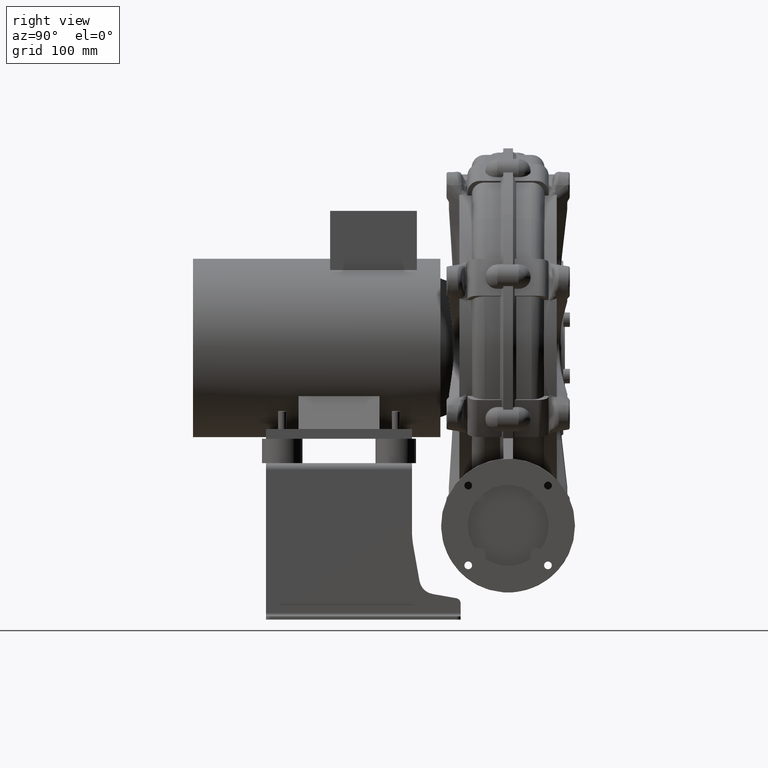
[diagram: clean part render]
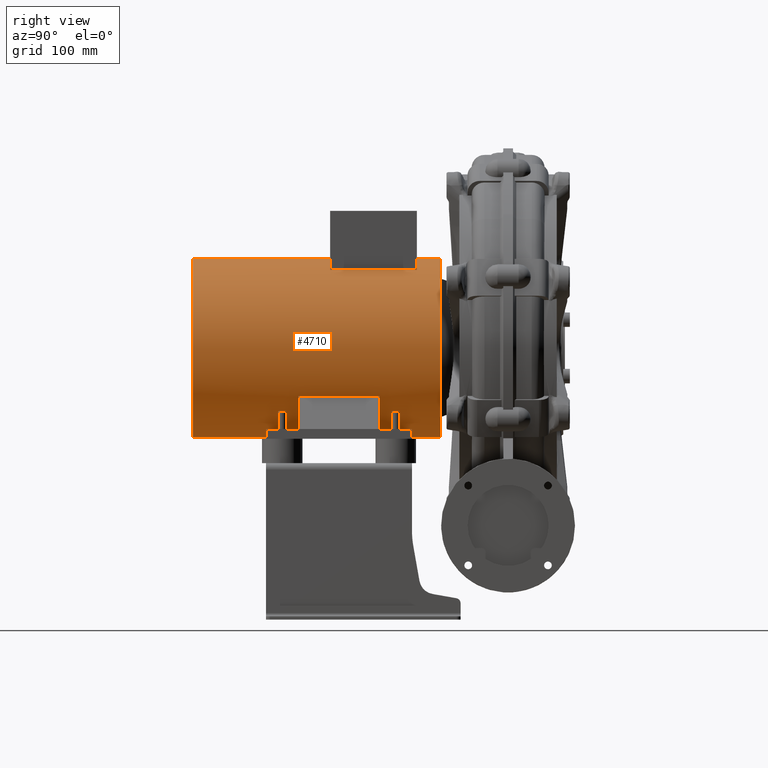
[diagram: same view with one face highlighted and labeled with its STEP entity id]
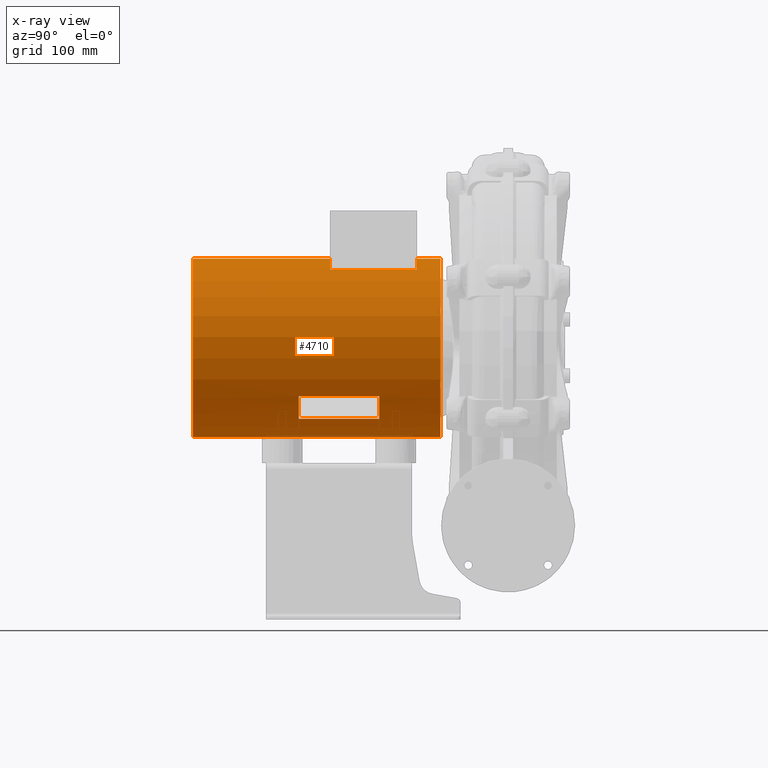
[diagram: x-ray of the same camera — body ghosted, the highlighted face saturated]
A machine part, right view. The second image highlights one B-rep face of the part: STEP entity #4710.
The next image is the same camera in x-ray: the body ghosted, the highlighted face saturated — about 1% of this face is hidden behind the body in this view.
In plain terms, the highlighted cylindrical surface (bore or boss wall) has radius 110 mm, axis along (0, -1, -0).
Its self-contained STEP definition (entity closure, byte-faithful):
#2753=CARTESIAN_POINT('',(4.970155E-014,-180.00000000000026,255.9999999999998));
#2754=VERTEX_POINT('',#2753);
#2755=CARTESIAN_POINT('',(4.737537E-014,-180.00000000000026,145.99999999999983));
#2756=DIRECTION('',(0.0,-1.0,0.0));
#2757=DIRECTION('',(0.0,0.0,1.0));
#2758=AXIS2_PLACEMENT_3D('',#2755,#2756,#2757);
#2759=CIRCLE('',#2758,110.0);
#2760=EDGE_CURVE('',#2754,#2754,#2759,.T.);
#2770=CARTESIAN_POINT('',(-2.352529E-014,124.99999999999974,255.9999999999998));
#2771=VERTEX_POINT('',#2770);
#2772=CARTESIAN_POINT('',(-2.585148E-014,124.99999999999974,145.99999999999983));
#2773=DIRECTION('',(0.0,-1.0,0.0));
#2774=DIRECTION('',(0.0,0.0,1.0));
#2775=AXIS2_PLACEMENT_3D('',#2772,#2773,#2774);
#2776=CIRCLE('',#2775,110.0);
#2777=EDGE_CURVE('',#2771,#2771,#2776,.T.);
#3061=CARTESIAN_POINT('',(-92.570742977567804,-50.000000000000355,86.580663546442196));
#3062=VERTEX_POINT('',#3061);
#3063=CARTESIAN_POINT('',(-66.74592952809823,-50.00000000000032,58.564418619018745));
#3064=VERTEX_POINT('',#3063);
#3065=CARTESIAN_POINT('',(1.616393E-014,-50.00000000000032,145.99999999999983));
#3066=DIRECTION('',(0.0,-1.0,0.0));
#3067=DIRECTION('',(0.0,0.0,1.0));
#3068=AXIS2_PLACEMENT_3D('',#3065,#3066,#3067);
#3069=CIRCLE('',#3068,110.0);
#3070=EDGE_CURVE('',#3062,#3064,#3069,.T.);
#3094=CARTESIAN_POINT('',(-92.570742977567846,49.999999999999702,86.580663546442196));
#3095=VERTEX_POINT('',#3094);
#3096=CARTESIAN_POINT('',(-92.570742977566169,49.999999999999694,86.580663546439609));
#3097=DIRECTION('',(0.0,-1.0,0.0));
#3098=VECTOR('',#3097,100.00000000000003);
#3099=LINE('',#3096,#3098);
#3100=EDGE_CURVE('',#3095,#3062,#3099,.T.);
#3119=CARTESIAN_POINT('',(-66.745929528098259,49.999999999999702,58.564418619018745));
#3120=VERTEX_POINT('',#3119);
#3127=CARTESIAN_POINT('',(-66.745929528108846,-50.000000000000341,58.564418619026952));
#3128=DIRECTION('',(0.0,1.0,0.0));
#3129=VECTOR('',#3128,100.00000000000003);
#3130=LINE('',#3127,#3129);
#3131=EDGE_CURVE('',#3064,#3120,#3130,.T.);
#3141=CARTESIAN_POINT('',(-7.844874E-015,49.99999999999968,145.99999999999983));
#3142=DIRECTION('',(0.0,1.0,0.0));
#3143=DIRECTION('',(0.0,0.0,1.0));
#3144=AXIS2_PLACEMENT_3D('',#3141,#3142,#3143);
#3145=CIRCLE('',#3144,110.0);
#3146=EDGE_CURVE('',#3120,#3095,#3145,.T.);
#3434=CARTESIAN_POINT('',(92.570742977567804,49.99999999999973,86.580663546442196));
#3435=VERTEX_POINT('',#3434);
#3436=CARTESIAN_POINT('',(66.74592952809823,49.99999999999973,58.564418619018745));
#3437=VERTEX_POINT('',#3436);
#3438=CARTESIAN_POINT('',(-7.844874E-015,49.99999999999968,145.99999999999983));
#3439=DIRECTION('',(0.0,1.0,0.0));
#3440=DIRECTION('',(0.0,0.0,1.0));
#3441=AXIS2_PLACEMENT_3D('',#3438,#3439,#3440);
#3442=CIRCLE('',#3441,110.0);
#3443=EDGE_CURVE('',#3435,#3437,#3442,.T.);
#3466=CARTESIAN_POINT('',(92.570742977567846,-50.000000000000284,86.580663546442196));
#3467=VERTEX_POINT('',#3466);
#3476=CARTESIAN_POINT('',(92.570742977566169,-50.000000000000298,86.580663546439609));
#3477=DIRECTION('',(0.0,1.0,0.0));
#3478=VECTOR('',#3477,100.00000000000003);
#3479=LINE('',#3476,#3478);
#3480=EDGE_CURVE('',#3467,#3435,#3479,.T.);
#3490=CARTESIAN_POINT('',(66.745929528098259,-50.00000000000032,58.564418619018745));
#3491=VERTEX_POINT('',#3490);
#3498=CARTESIAN_POINT('',(66.74592952810886,49.999999999999737,58.564418619026952));
#3499=DIRECTION('',(0.0,-1.0,0.0));
#3500=VECTOR('',#3499,100.00000000000003);
#3501=LINE('',#3498,#3500);
#3502=EDGE_CURVE('',#3437,#3491,#3501,.T.);
#3514=CARTESIAN_POINT('',(1.616393E-014,-50.00000000000032,145.99999999999983));
#3515=DIRECTION('',(0.0,-1.0,0.0));
#3516=DIRECTION('',(0.0,0.0,1.0));
#3517=AXIS2_PLACEMENT_3D('',#3514,#3515,#3516);
#3518=CIRCLE('',#3517,110.0);
#3519=EDGE_CURVE('',#3491,#3467,#3518,.T.);
#3648=CARTESIAN_POINT('',(-53.500000000000021,95.999999999999773,242.11321449207679));
#3649=VERTEX_POINT('',#3648);
#3650=CARTESIAN_POINT('',(53.499999999999986,95.999999999999773,242.11321449207679));
#3651=VERTEX_POINT('',#3650);
#3652=CARTESIAN_POINT('',(-1.888892E-014,95.999999999999773,145.99999999999983));
#3653=DIRECTION('',(0.0,1.0,0.0));
#3654=DIRECTION('',(0.0,0.0,1.0));
#3655=AXIS2_PLACEMENT_3D('',#3652,#3653,#3654);
#3656=CIRCLE('',#3655,110.0);
#3657=EDGE_CURVE('',#3649,#3651,#3656,.T.);
#3680=CARTESIAN_POINT('',(53.500000000000021,-11.000000000000263,242.11321449207679));
#3681=VERTEX_POINT('',#3680);
#3682=CARTESIAN_POINT('',(53.499999999999993,95.999999999999773,242.11321449207679));
#3683=DIRECTION('',(0.0,-1.0,0.0));
#3684=VECTOR('',#3683,107.00000000000003);
#3685=LINE('',#3682,#3684);
#3686=EDGE_CURVE('',#3651,#3681,#3685,.T.);
#3704=CARTESIAN_POINT('',(-53.500000000000007,-11.000000000000263,242.11321449207679));
#3705=VERTEX_POINT('',#3704);
#3706=CARTESIAN_POINT('',(6.800496E-015,-11.000000000000263,145.99999999999983));
#3707=DIRECTION('',(0.0,-1.0,0.0));
#3708=DIRECTION('',(0.0,0.0,1.0));
#3709=AXIS2_PLACEMENT_3D('',#3706,#3707,#3708);
#3710=CIRCLE('',#3709,110.0);
#3711=EDGE_CURVE('',#3681,#3705,#3710,.T.);
#3729=CARTESIAN_POINT('',(-53.500000000000014,-11.000000000000263,242.11321449207679));
#3730=DIRECTION('',(0.0,1.0,0.0));
#3731=VECTOR('',#3730,107.00000000000003);
#3732=LINE('',#3729,#3731);
#3733=EDGE_CURVE('',#3705,#3649,#3732,.T.);
#3805=CARTESIAN_POINT('',(1.076195E-014,-27.500000000000249,145.99999999999983));
#3806=DIRECTION('',(2.400880E-016,-1.0,-5.334183E-018));
#3807=DIRECTION('',(0.0,0.0,1.0));
#3808=AXIS2_PLACEMENT_3D('',#3805,#3806,#3807);
#3809=CYLINDRICAL_SURFACE('',#3808,110.0);
#3810=CARTESIAN_POINT('',(-109.99642083929092,-138.17666126418186,145.11264294356911));
#3811=VERTEX_POINT('',#3810);
#3812=CARTESIAN_POINT('',(-109.646406724013,-131.48298217179939,137.1871972385448));
#3813=VERTEX_POINT('',#3812);
#3814=CARTESIAN_POINT('',(-109.99642083929091,-138.17666126418183,145.11264294356909));
#3815=CARTESIAN_POINT('',(-109.98640944947036,-138.17666126418183,143.87163512162664));
#3816=CARTESIAN_POINT('',(-109.95347502731177,-138.03046907723962,142.59418240218511));
#3817=CARTESIAN_POINT('',(-109.85843135713255,-137.21223621787459,140.31029652863));
#3818=CARTESIAN_POINT('',(-109.81474203885307,-136.67462905741942,139.60364222296772));
#3819=CARTESIAN_POINT('',(-109.75127738458443,-135.74246516402746,138.58386526508627));
#3820=CARTESIAN_POINT('',(-109.71769527764008,-135.12154883156586,138.11716295550681));
#3821=CARTESIAN_POINT('',(-109.67760707057458,-133.96971312546438,137.58195609738206));
#3822=CARTESIAN_POINT('',(-109.66618079382121,-133.51557467130687,137.43622527280505));
#3823=CARTESIAN_POINT('',(-109.65014466755761,-132.53238881506036,137.23318119328442));
#3824=CARTESIAN_POINT('',(-109.64640672401299,-132.00784829025125,137.1871972385448));
#3825=CARTESIAN_POINT('',(-109.64640672401299,-131.48298217179939,137.1871972385448));
#3826=B_SPLINE_CURVE_WITH_KNOTS('',3,(#3814,#3815,#3816,#3817,#3818,#3819,#3820,#3821,#3822,#3823,#3824,#3825),.UNSPECIFIED.,.F.,.U.,(4,2,2,2,2,4),(0.0,0.37231446088537,0.728102808409771,1.204198864470581,1.49238735578631,1.808090783162337),.UNSPECIFIED.);
#3827=EDGE_CURVE('',#3811,#3813,#3826,.T.);
#3828=ORIENTED_EDGE('',*,*,#3827,.T.);
#3829=CARTESIAN_POINT('',(-109.99642083929092,-124.77309562398737,145.11264294356911));
#3830=VERTEX_POINT('',#3829);
#3831=CARTESIAN_POINT('',(-109.64640672401299,-131.48298217179936,137.1871972385448));
#3832=CARTESIAN_POINT('',(-109.64640672401299,-130.56369830123947,137.1871972385448));
#3833=CARTESIAN_POINT('',(-109.65796701369388,-129.65194435956522,137.32521643680036));
#3834=CARTESIAN_POINT('',(-109.70580022848038,-128.11019878455426,137.95527645299782));
#3835=CARTESIAN_POINT('',(-109.7355719717803,-127.49969581562712,138.35941995367591));
#3836=CARTESIAN_POINT('',(-109.79724882997529,-126.53096878454058,139.3105604751604));
#3837=CARTESIAN_POINT('',(-109.8366483925396,-126.01902294002375,139.94044698923631));
#3838=CARTESIAN_POINT('',(-109.9075417972267,-125.31760618787101,141.44951235326869));
#3839=CARTESIAN_POINT('',(-109.93268110480463,-125.11942775564461,142.09566357361101));
#3840=CARTESIAN_POINT('',(-109.97497456115055,-124.83518001581103,143.52975826139087));
#3841=CARTESIAN_POINT('',(-109.99006653720393,-124.77309562398736,144.32496623391165));
#3842=CARTESIAN_POINT('',(-109.99642083929092,-124.77309562398736,145.11264294356911));
#3843=B_SPLINE_CURVE_WITH_KNOTS('',3,(#3831,#3832,#3833,#3834,#3835,#3836,#3837,#3838,#3839,#3840,#3841,#3842),.UNSPECIFIED.,.F.,.U.,(4,2,2,2,2,4),(0.0,0.275785161167967,0.499729491640265,0.683397029581067,0.808506146126757,0.954547615339849),.UNSPECIFIED.);
#3844=EDGE_CURVE('',#3813,#3830,#3843,.T.);
#3845=ORIENTED_EDGE('',*,*,#3844,.T.);
#3846=CARTESIAN_POINT('',(-109.77461140069926,-131.48298217179939,153.03808864859343));
#3847=VERTEX_POINT('',#3846);
#3848=CARTESIAN_POINT('',(-109.99642083929091,-124.77309562398736,145.11264294356914));
#3849=CARTESIAN_POINT('',(-110.00678215769211,-124.77309562398736,146.39702777045261));
#3850=CARTESIAN_POINT('',(-109.9931600203921,-124.93453415054972,147.71542893761611));
#3851=CARTESIAN_POINT('',(-109.93412351202682,-125.79248909107548,149.94308735159743));
#3852=CARTESIAN_POINT('',(-109.90291613636174,-126.31856855662143,150.64741543562747));
#3853=CARTESIAN_POINT('',(-109.85246667106479,-127.35094480889593,151.7245679005799));
#3854=CARTESIAN_POINT('',(-109.82660719484647,-127.99085834852271,152.18217150661837));
#3855=CARTESIAN_POINT('',(-109.7969034737055,-129.14140920591865,152.68378724075922));
#3856=CARTESIAN_POINT('',(-109.78871519189087,-129.57409861740069,152.81510475139913));
#3857=CARTESIAN_POINT('',(-109.77730134749874,-130.50155451427483,152.9966450227414));
#3858=CARTESIAN_POINT('',(-109.77461140069926,-130.99192956356771,153.03808864859343));
#3859=CARTESIAN_POINT('',(-109.77461140069926,-131.48298217179939,153.03808864859343));
#3860=B_SPLINE_CURVE_WITH_KNOTS('',3,(#3848,#3849,#3850,#3851,#3852,#3853,#3854,#3855,#3856,#3857,#3858,#3859),.UNSPECIFIED.,.F.,.U.,(4,2,2,2,2,4),(0.0,0.385327985799469,0.716077551845481,1.099436865282513,1.316622449357015,1.551522109797855),.UNSPECIFIED.);
#3861=EDGE_CURVE('',#3830,#3847,#3860,.T.);
#3862=ORIENTED_EDGE('',*,*,#3861,.T.);
#3863=CARTESIAN_POINT('',(-109.77461140069926,-131.48298217179939,153.03808864859343));
#3864=CARTESIAN_POINT('',(-109.77461140069926,-132.39897758236174,153.03808864859343));
#3865=CARTESIAN_POINT('',(-109.78408669800521,-133.30381411383587,152.89750455170801));
#3866=CARTESIAN_POINT('',(-109.82210147739607,-134.85745334836506,152.26021113144429));
#3867=CARTESIAN_POINT('',(-109.84593256832618,-135.48075777225094,151.84442277240097));
#3868=CARTESIAN_POINT('',(-109.8943953647441,-136.50302309432178,150.84167263656514));
#3869=CARTESIAN_POINT('',(-109.92433576738927,-137.02408014982836,150.19079439210219));
#3870=CARTESIAN_POINT('',(-109.96999800790151,-137.69383536429024,148.63679771118649));
#3871=CARTESIAN_POINT('',(-109.98346173909761,-137.87033460984131,148.01079842140109));
#3872=CARTESIAN_POINT('',(-110.00069478410198,-138.1220317555651,146.63158161945537));
#3873=CARTESIAN_POINT('',(-110.00251138792665,-138.17666126418186,145.86762488237557));
#3874=CARTESIAN_POINT('',(-109.99642083929092,-138.17666126418186,145.11264294356911));
#3875=B_SPLINE_CURVE_WITH_KNOTS('',3,(#3863,#3864,#3865,#3866,#3867,#3868,#3869,#3870,#3871,#3872,#3873,#3874),.UNSPECIFIED.,.F.,.U.,(4,2,2,2,2,4),(0.0,0.274798623168694,0.503807245972399,0.704564605012723,0.828790308873579,0.973756011323332),.UNSPECIFIED.);
#3876=EDGE_CURVE('',#3847,#3811,#3875,.T.);
#3877=ORIENTED_EDGE('',*,*,#3876,.T.);
#3878=EDGE_LOOP('',(#3828,#3845,#3862,#3877));
#3879=FACE_OUTER_BOUND('',#3878,.T.);
#3880=CARTESIAN_POINT('',(-109.99111733190036,-68.8735818476502,147.39789415912827));
#3881=VERTEX_POINT('',#3880);
#3882=CARTESIAN_POINT('',(-109.99111733190036,-59.683954619125075,147.39789415912827));
#3883=VERTEX_POINT('',#3882);
#3884=CARTESIAN_POINT('',(-109.99111733190034,-68.8735818476502,147.39789415912827));
#3885=DIRECTION('',(0.0,1.0,0.0));
#3886=VECTOR('',#3885,9.189627228525126);
#3887=LINE('',#3884,#3886);
#3888=EDGE_CURVE('',#3881,#3883,#3887,.T.);
#3889=ORIENTED_EDGE('',*,*,#3888,.T.);
#3890=CARTESIAN_POINT('',(-109.8348666127161,-59.683954619125075,139.97487957241839));
#3891=VERTEX_POINT('',#3890);
#3892=CARTESIAN_POINT('',(1.848893E-014,-59.683954619125039,145.99999999999983));
#3893=DIRECTION('',(0.0,-1.0,0.0));
#3894=DIRECTION('',(0.0,0.0,1.0));
#3895=AXIS2_PLACEMENT_3D('',#3892,#3893,#3894);
#3896=CIRCLE('',#3895,110.0);
#3897=EDGE_CURVE('',#3883,#3891,#3896,.T.);
#3898=ORIENTED_EDGE('',*,*,#3897,.T.);
#3899=CARTESIAN_POINT('',(-109.8348666127161,-69.538087520259609,139.97487957241839));
#3900=VERTEX_POINT('',#3899);
#3901=CARTESIAN_POINT('',(-109.83486661271608,-59.683954619125075,139.97487957241839));
#3902=DIRECTION('',(0.0,-1.0,0.0));
#3903=VECTOR('',#3902,9.854132901134534);
#3904=LINE('',#3901,#3903);
#3905=EDGE_CURVE('',#3891,#3900,#3904,.T.);
#3906=ORIENTED_EDGE('',*,*,#3905,.T.);
#3907=CARTESIAN_POINT('',(-109.67946141521895,-69.538087520259609,137.60859107971174));
#3908=VERTEX_POINT('',#3907);
#3909=CARTESIAN_POINT('',(2.085479E-014,-69.538087520259566,145.99999999999983));
#3910=DIRECTION('',(0.0,-1.0,0.0));
#3911=DIRECTION('',(0.0,0.0,1.0));
#3912=AXIS2_PLACEMENT_3D('',#3909,#3910,#3911);
#3913=CIRCLE('',#3912,110.0);
#3914=EDGE_CURVE('',#3900,#3908,#3913,.T.);
#3915=ORIENTED_EDGE('',*,*,#3914,.T.);
#3916=CARTESIAN_POINT('',(-109.67946141521895,-57.02593192868747,137.60859107971174));
#3917=VERTEX_POINT('',#3916);
#3918=CARTESIAN_POINT('',(-109.67946141521894,-69.538087520259609,137.60859107971174));
#3919=DIRECTION('',(0.0,1.0,0.0));
#3920=VECTOR('',#3919,12.512155591572139);
#3921=LINE('',#3918,#3920);
#3922=EDGE_CURVE('',#3908,#3917,#3921,.T.);
#3923=ORIENTED_EDGE('',*,*,#3922,.T.);
#3924=CARTESIAN_POINT('',(-109.38574227541736,-57.02593192868747,157.60859107971174));
#3925=VERTEX_POINT('',#3924);
#3926=CARTESIAN_POINT('',(1.785077E-014,-57.025931928687434,145.99999999999983));
#3927=DIRECTION('',(0.0,1.0,0.0));
#3928=DIRECTION('',(0.0,0.0,1.0));
#3929=AXIS2_PLACEMENT_3D('',#3926,#3927,#3928);
#3930=CIRCLE('',#3929,110.0);
#3931=EDGE_CURVE('',#3917,#3925,#3930,.T.);
#3932=ORIENTED_EDGE('',*,*,#3931,.T.);
#3933=CARTESIAN_POINT('',(-109.38574227541736,-69.538087520259609,157.60859107971174));
#3934=VERTEX_POINT('',#3933);
#3935=CARTESIAN_POINT('',(-109.38574227541736,-57.02593192868747,157.60859107971174));
#3936=DIRECTION('',(0.0,-1.0,0.0));
#3937=VECTOR('',#3936,12.512155591572139);
#3938=LINE('',#3935,#3937);
#3939=EDGE_CURVE('',#3925,#3934,#3938,.T.);
#3940=ORIENTED_EDGE('',*,*,#3939,.T.);
#3941=CARTESIAN_POINT('',(-109.61103887332804,-69.538087520259609,155.2423025870051));
#3942=VERTEX_POINT('',#3941);
#3943=CARTESIAN_POINT('',(2.085479E-014,-69.538087520259566,145.99999999999983));
#3944=DIRECTION('',(0.0,-1.0,0.0));
#3945=DIRECTION('',(0.0,0.0,1.0));
#3946=AXIS2_PLACEMENT_3D('',#3943,#3944,#3945);
#3947=CIRCLE('',#3946,110.0);
#3948=EDGE_CURVE('',#3934,#3942,#3947,.T.);
#3949=ORIENTED_EDGE('',*,*,#3948,.T.);
#3950=CARTESIAN_POINT('',(-109.61103887332804,-59.683954619125075,155.2423025870051));
#3951=VERTEX_POINT('',#3950);
#3952=CARTESIAN_POINT('',(-109.61103887332803,-69.538087520259609,155.2423025870051));
#3953=DIRECTION('',(0.0,1.0,0.0));
#3954=VECTOR('',#3953,9.854132901134534);
#3955=LINE('',#3952,#3954);
#3956=EDGE_CURVE('',#3942,#3951,#3955,.T.);
#3957=ORIENTED_EDGE('',*,*,#3956,.T.);
#3958=CARTESIAN_POINT('',(-109.93557626611877,-59.683954619125075,149.76418265183491));
#3959=VERTEX_POINT('',#3958);
#3960=CARTESIAN_POINT('',(1.848893E-014,-59.683954619125039,145.99999999999983));
#3961=DIRECTION('',(0.0,-1.0,0.0));
#3962=DIRECTION('',(0.0,0.0,1.0));
#3963=AXIS2_PLACEMENT_3D('',#3960,#3961,#3962);
#3964=CIRCLE('',#3963,110.0);
#3965=EDGE_CURVE('',#3951,#3959,#3964,.T.);
#3966=ORIENTED_EDGE('',*,*,#3965,.T.);
#3967=CARTESIAN_POINT('',(-109.93557626611877,-68.8735818476502,149.76418265183491));
#3968=VERTEX_POINT('',#3967);
#3969=CARTESIAN_POINT('',(-109.93557626611876,-59.683954619125075,149.76418265183491));
#3970=DIRECTION('',(0.0,-1.0,0.0));
#3971=VECTOR('',#3970,9.189627228525126);
#3972=LINE('',#3969,#3971);
#3973=EDGE_CURVE('',#3959,#3968,#3972,.T.);
#3974=ORIENTED_EDGE('',*,*,#3973,.T.);
#3975=CARTESIAN_POINT('',(2.069525E-014,-68.873581847650172,145.99999999999983));
#3976=DIRECTION('',(0.0,-1.0,0.0));
#3977=DIRECTION('',(0.0,0.0,1.0));
#3978=AXIS2_PLACEMENT_3D('',#3975,#3976,#3977);
#3979=CIRCLE('',#3978,110.0);
#3980=EDGE_CURVE('',#3968,#3881,#3979,.T.);
#3981=ORIENTED_EDGE('',*,*,#3980,.T.);
#3982=EDGE_LOOP('',(#3889,#3898,#3906,#3915,#3923,#3932,#3940,#3949,#3957,#3966,#3974,#3981));
#3983=FACE_BOUND('',#3982,.T.);
#3984=CARTESIAN_POINT('',(-109.99964470475375,-95.55105348460323,146.27957973449293));
#3985=VERTEX_POINT('',#3984);
#3986=CARTESIAN_POINT('',(-109.80081670837137,-101.48298217179931,152.61669480742648));
#3987=VERTEX_POINT('',#3986);
#3988=CARTESIAN_POINT('',(2.703736E-014,-95.289349692213221,145.99999999999983));
#3989=DIRECTION('',(-1.608274E-016,0.730061038034414,0.683381943530932));
#3990=DIRECTION('',(1.795105E-016,-0.683381943530932,0.730061038034414));
#3991=AXIS2_PLACEMENT_3D('',#3988,#3989,#3990);
#3992=ELLIPSE('',#3991,150.67233322868373,110.00000000000001);
#3993=EDGE_CURVE('',#3985,#3987,#3992,.T.);
#3994=ORIENTED_EDGE('',*,*,#3993,.T.);
#3995=CARTESIAN_POINT('',(-109.80081670837137,-104.62722852512186,152.61669480742648));
#3996=VERTEX_POINT('',#3995);
#3997=CARTESIAN_POINT('',(-109.80081670837137,-101.48298217179931,152.61669480742648));
#3998=DIRECTION('',(0.0,-1.0,0.0));
#3999=VECTOR('',#3998,3.144246353322558);
#4000=LINE('',#3997,#3999);
#4001=EDGE_CURVE('',#3987,#3996,#4000,.T.);
#4002=ORIENTED_EDGE('',*,*,#4001,.T.);
#4003=CARTESIAN_POINT('',(-109.99946082621308,-98.468395461912763,146.34440955621093));
#4004=VERTEX_POINT('',#4003);
#4005=CARTESIAN_POINT('',(2.771942E-014,-98.130215535917358,145.99999999999983));
#4006=DIRECTION('',(1.564939E-016,-0.713530452504738,-0.70062421692972));
#4007=DIRECTION('',(1.833006E-016,-0.70062421692972,0.713530452504738));
#4008=AXIS2_PLACEMENT_3D('',#4005,#4006,#4007);
#4009=ELLIPSE('',#4008,154.16300679790473,110.0);
#4010=EDGE_CURVE('',#3996,#4004,#4009,.T.);
#4011=ORIENTED_EDGE('',*,*,#4010,.T.);
#4012=CARTESIAN_POINT('',(-109.67946141521894,-105.45380875202622,137.60859107971174));
#4013=VERTEX_POINT('',#4012);
#4014=CARTESIAN_POINT('',(2.786673E-014,-98.743795311127911,145.99999999999983));
#4015=DIRECTION('',(2.007179E-016,-0.781010155149751,0.624518324433288));
#4016=DIRECTION('',(-1.334233E-016,0.624518324433288,0.781010155149751));
#4017=AXIS2_PLACEMENT_3D('',#4014,#4015,#4016);
#4018=ELLIPSE('',#4017,140.84323907274751,110.00000000000001);
#4019=EDGE_CURVE('',#4004,#4013,#4018,.T.);
#4020=ORIENTED_EDGE('',*,*,#4019,.T.);
#4021=CARTESIAN_POINT('',(-109.67946141521894,-102.13128038897923,137.60859107971174));
#4022=VERTEX_POINT('',#4021);
#4023=CARTESIAN_POINT('',(-109.67946141521894,-105.45380875202622,137.60859107971174));
#4024=DIRECTION('',(0.0,1.0,0.0));
#4025=VECTOR('',#4024,3.322528363046985);
#4026=LINE('',#4023,#4025);
#4027=EDGE_CURVE('',#4013,#4022,#4026,.T.);
#4028=ORIENTED_EDGE('',*,*,#4027,.T.);
#4029=CARTESIAN_POINT('',(-109.99402317109647,-96.555915721232068,144.85332365669714));
#4030=VERTEX_POINT('',#4029);
#4031=CARTESIAN_POINT('',(2.712958E-014,-95.673462338466663,145.99999999999983));
#4032=DIRECTION('',(-2.031651E-016,0.792492155480902,-0.609882106231388));
#4033=DIRECTION('',(-1.296665E-016,0.609882106231388,0.792492155480902));
#4034=AXIS2_PLACEMENT_3D('',#4031,#4032,#4033);
#4035=ELLIPSE('',#4034,138.80263576016043,110.0);
#4036=EDGE_CURVE('',#4022,#4030,#4035,.T.);
#4037=ORIENTED_EDGE('',*,*,#4036,.T.);
#4038=CARTESIAN_POINT('',(-109.9795859006351,-95.55105348460323,143.88087633092729));
#4039=VERTEX_POINT('',#4038);
#4040=CARTESIAN_POINT('',(2.762593E-014,-97.740814609311457,145.99999999999983));
#4041=DIRECTION('',(1.517660E-016,-0.695421427516059,-0.718602141766587));
#4042=DIRECTION('',(1.872339E-016,-0.718602141766587,0.695421427516059));
#4043=AXIS2_PLACEMENT_3D('',#4040,#4041,#4042);
#4044=ELLIPSE('',#4043,158.17746714090106,109.99999999999999);
#4045=EDGE_CURVE('',#4030,#4039,#4044,.T.);
#4046=ORIENTED_EDGE('',*,*,#4045,.T.);
#4047=CARTESIAN_POINT('',(-109.67946141521895,-95.55105348460323,137.60859107971174));
#4048=VERTEX_POINT('',#4047);
#4049=CARTESIAN_POINT('',(2.710019E-014,-95.551053484603187,145.99999999999983));
#4050=DIRECTION('',(0.0,-1.0,0.0));
#4051=DIRECTION('',(0.0,0.0,1.0));
#4052=AXIS2_PLACEMENT_3D('',#4049,#4050,#4051);
#4053=CIRCLE('',#4052,110.0);
#4054=EDGE_CURVE('',#4039,#4048,#4053,.T.);
#4055=ORIENTED_EDGE('',*,*,#4054,.T.);
#4056=CARTESIAN_POINT('',(-109.67946141521895,-93.022690437601597,137.60859107971174));
#4057=VERTEX_POINT('',#4056);
#4058=CARTESIAN_POINT('',(-109.67946141521894,-95.55105348460323,137.60859107971174));
#4059=DIRECTION('',(0.0,1.0,0.0));
#4060=VECTOR('',#4059,2.528363047001633);
#4061=LINE('',#4058,#4060);
#4062=EDGE_CURVE('',#4048,#4057,#4061,.T.);
#4063=ORIENTED_EDGE('',*,*,#4062,.T.);
#4064=CARTESIAN_POINT('',(-109.28746484291617,-93.022690437601597,158.50000112833411));
#4065=VERTEX_POINT('',#4064);
#4066=CARTESIAN_POINT('',(2.649316E-014,-93.022690437601554,145.99999999999983));
#4067=DIRECTION('',(0.0,1.0,0.0));
#4068=DIRECTION('',(0.0,0.0,1.0));
#4069=AXIS2_PLACEMENT_3D('',#4066,#4067,#4068);
#4070=CIRCLE('',#4069,110.0);
#4071=EDGE_CURVE('',#4057,#4065,#4070,.T.);
#4072=ORIENTED_EDGE('',*,*,#4071,.T.);
#4073=CARTESIAN_POINT('',(-109.28746484291617,-95.55105348460323,158.50000112833411));
#4074=VERTEX_POINT('',#4073);
#4075=CARTESIAN_POINT('',(-109.28746484291615,-93.022690437601597,158.50000112833411));
#4076=DIRECTION('',(0.0,-1.0,0.0));
#4077=VECTOR('',#4076,2.528363047001633);
#4078=LINE('',#4075,#4077);
#4079=EDGE_CURVE('',#4065,#4074,#4078,.T.);
#4080=ORIENTED_EDGE('',*,*,#4079,.T.);
#4081=CARTESIAN_POINT('',(2.710019E-014,-95.551053484603187,145.99999999999983));
#4082=DIRECTION('',(0.0,-1.0,0.0));
#4083=DIRECTION('',(0.0,0.0,1.0));
#4084=AXIS2_PLACEMENT_3D('',#4081,#4082,#4083);
#4085=CIRCLE('',#4084,110.0);
#4086=EDGE_CURVE('',#4074,#3985,#4085,.T.);
#4087=ORIENTED_EDGE('',*,*,#4086,.T.);
#4088=EDGE_LOOP('',(#3994,#4002,#4011,#4020,#4028,#4037,#4046,#4055,#4063,#4072,#4080,#4087));
#4089=FACE_BOUND('',#4088,.T.);
#4090=CARTESIAN_POINT('',(-109.67946141521895,-72.30956239870369,137.60859107971174));
#4091=VERTEX_POINT('',#4090);
#4092=CARTESIAN_POINT('',(-109.28746484291617,-72.30956239870369,158.50000112833411));
#4093=VERTEX_POINT('',#4092);
#4094=CARTESIAN_POINT('',(2.152019E-014,-72.309562398703662,145.99999999999983));
#4095=DIRECTION('',(0.0,1.0,0.0));
#4096=DIRECTION('',(0.0,0.0,1.0));
#4097=AXIS2_PLACEMENT_3D('',#4094,#4095,#4096);
#4098=CIRCLE('',#4097,110.0);
#4099=EDGE_CURVE('',#4091,#4093,#4098,.T.);
#4100=ORIENTED_EDGE('',*,*,#4099,.T.);
#4101=CARTESIAN_POINT('',(-109.28746484291617,-74.837925445705338,158.50000112833411));
#4102=VERTEX_POINT('',#4101);
#4103=CARTESIAN_POINT('',(-109.28746484291615,-72.30956239870369,158.50000112833411));
#4104=DIRECTION('',(0.0,-1.0,0.0));
#4105=VECTOR('',#4104,2.528363047001648);
#4106=LINE('',#4103,#4105);
#4107=EDGE_CURVE('',#4093,#4102,#4106,.T.);
#4108=ORIENTED_EDGE('',*,*,#4107,.T.);
#4109=CARTESIAN_POINT('',(-109.67946141521895,-74.837925445705338,137.60859107971174));
#4110=VERTEX_POINT('',#4109);
#4111=CARTESIAN_POINT('',(2.212722E-014,-74.837925445705309,145.99999999999983));
#4112=DIRECTION('',(0.0,-1.0,0.0));
#4113=DIRECTION('',(0.0,0.0,1.0));
#4114=AXIS2_PLACEMENT_3D('',#4111,#4112,#4113);
#4115=CIRCLE('',#4114,110.0);
#4116=EDGE_CURVE('',#4102,#4110,#4115,.T.);
#4117=ORIENTED_EDGE('',*,*,#4116,.T.);
#4118=CARTESIAN_POINT('',(-109.67946141521894,-74.837925445705338,137.60859107971174));
#4119=DIRECTION('',(0.0,1.0,0.0));
#4120=VECTOR('',#4119,2.528363047001648);
#4121=LINE('',#4118,#4120);
#4122=EDGE_CURVE('',#4110,#4091,#4121,.T.);
#4123=ORIENTED_EDGE('',*,*,#4122,.T.);
#4124=EDGE_LOOP('',(#4100,#4108,#4117,#4123));
#4125=FACE_BOUND('',#4124,.T.);
#4126=CARTESIAN_POINT('',(-109.90685115116051,-109.40842787682364,150.52593305702129));
#4127=VERTEX_POINT('',#4126);
#4128=CARTESIAN_POINT('',(-109.96875670160466,-109.40842787682364,143.37844521261286));
#4129=VERTEX_POINT('',#4128);
#4130=CARTESIAN_POINT('',(3.042718E-014,-109.40842787682359,145.99999999999983));
#4131=DIRECTION('',(0.0,-1.0,0.0));
#4132=DIRECTION('',(0.0,0.0,1.0));
#4133=AXIS2_PLACEMENT_3D('',#4130,#4131,#4132);
#4134=CIRCLE('',#4133,110.0);
#4135=EDGE_CURVE('',#4127,#4129,#4134,.T.);
#4136=ORIENTED_EDGE('',*,*,#4135,.T.);
#4137=CARTESIAN_POINT('',(-109.86045977798395,-109.76499189627259,140.46110323530331));
#4138=VERTEX_POINT('',#4137);
#4139=CARTESIAN_POINT('',(-109.96875670160465,-109.40842787682362,143.37844521261286));
#4140=CARTESIAN_POINT('',(-109.95571494843259,-109.40842787682362,142.83137086251992));
#4141=CARTESIAN_POINT('',(-109.93412601007236,-109.41466082405988,142.15760168985804));
#4142=CARTESIAN_POINT('',(-109.91117066475411,-109.45149197586377,141.57989332382024));
#4143=CARTESIAN_POINT('',(-109.90664789320847,-109.45906237464577,141.46683331341018));
#4144=CARTESIAN_POINT('',(-109.88765149246341,-109.53130980771753,141.02049602592038));
#4145=CARTESIAN_POINT('',(-109.87417300272993,-109.62487428761565,140.7330962403432));
#4146=CARTESIAN_POINT('',(-109.86045977798392,-109.76499189627256,140.46110323530331));
#4147=B_SPLINE_CURVE_WITH_KNOTS('',3,(#4139,#4140,#4141,#4142,#4143,#4144,#4145,#4146),.UNSPECIFIED.,.F.,.U.,(4,2,2,4),(0.0,0.164168933927792,0.18064241346171,0.215134237445378),.UNSPECIFIED.);
#4148=EDGE_CURVE('',#4129,#4138,#4147,.T.);
#4149=ORIENTED_EDGE('',*,*,#4148,.T.);
#4150=CARTESIAN_POINT('',(-109.80903185387632,-111.88816855753679,139.52107082039245));
#4151=VERTEX_POINT('',#4150);
#4152=CARTESIAN_POINT('',(-109.86045977798392,-109.76499189627256,140.46110323530331));
#4153=CARTESIAN_POINT('',(-109.85179386451969,-109.84796981303407,140.28922040772588));
#4154=CARTESIAN_POINT('',(-109.84383751304954,-109.96015702885475,140.13933200660131));
#4155=CARTESIAN_POINT('',(-109.83204941354656,-110.20439224000491,139.92307743327706));
#4156=CARTESIAN_POINT('',(-109.82548483706188,-110.36378246240936,139.80548901348158));
#4157=CARTESIAN_POINT('',(-109.81186307294108,-110.98175281804953,139.56764804347196));
#4158=CARTESIAN_POINT('',(-109.80903185387632,-111.43672401461308,139.52107082039245));
#4159=CARTESIAN_POINT('',(-109.80903185387632,-111.88816855753677,139.52107082039245));
#4160=B_SPLINE_CURVE_WITH_KNOTS('',3,(#4152,#4153,#4154,#4155,#4156,#4157,#4158,#4159),.UNSPECIFIED.,.F.,.U.,(4,2,2,4),(0.0,0.057318169220619,0.097928365767004,0.158813279651776),.UNSPECIFIED.);
#4161=EDGE_CURVE('',#4138,#4151,#4160,.T.);
#4162=ORIENTED_EDGE('',*,*,#4161,.T.);
#4163=CARTESIAN_POINT('',(-109.83663997314301,-113.91410048622397,140.00729448327738));
#4164=VERTEX_POINT('',#4163);
#4165=CARTESIAN_POINT('',(-109.80903185387625,-111.88816855753677,139.52107082039245));
#4166=CARTESIAN_POINT('',(-109.80903185387625,-112.29497065176554,139.52107082039245));
#4167=CARTESIAN_POINT('',(-109.81268480845777,-112.69221959243751,139.58205546676913));
#4168=CARTESIAN_POINT('',(-109.81986562942659,-113.07916872488526,139.7073762916676));
#4169=CARTESIAN_POINT('',(-109.82048257063852,-113.11241351232056,139.71814324741345));
#4170=CARTESIAN_POINT('',(-109.82249887743386,-113.22119305313187,139.7533556704887));
#4171=CARTESIAN_POINT('',(-109.82490832506777,-113.3471020594981,139.79600843082179));
#4172=CARTESIAN_POINT('',(-109.82809944764554,-113.51385856721421,139.85249863404769));
#4173=CARTESIAN_POINT('',(-109.83269439390924,-113.7488065150053,139.9349783708692));
#4174=CARTESIAN_POINT('',(-109.83663997314295,-113.91410048622396,140.00729448327738));
#4175=B_SPLINE_CURVE_WITH_KNOTS('',3,(#4165,#4166,#4167,#4168,#4169,#4170,#4171,#4172,#4173,#4174),.UNSPECIFIED.,.F.,.U.,(4,3,3,4),(0.0,0.122040628268634,0.132525765474125,0.146412499344667),.UNSPECIFIED.);
#4176=EDGE_CURVE('',#4151,#4164,#4175,.T.);
#4177=ORIENTED_EDGE('',*,*,#4176,.T.);
#4178=CARTESIAN_POINT('',(-109.83663997314301,-114.05996758508945,140.00729448327738));
#4179=VERTEX_POINT('',#4178);
#4180=CARTESIAN_POINT('',(-109.83663997314301,-113.91410048622397,140.00729448327738));
#4181=DIRECTION('',(0.0,-1.0,0.0));
#4182=VECTOR('',#4181,0.14586709886548);
#4183=LINE('',#4180,#4182);
#4184=EDGE_CURVE('',#4164,#4179,#4183,.T.);
#4185=ORIENTED_EDGE('',*,*,#4184,.T.);
#4186=CARTESIAN_POINT('',(-109.68930439603683,-114.05996758508945,137.7382507231477));
#4187=VERTEX_POINT('',#4186);
#4188=CARTESIAN_POINT('',(3.154396E-014,-114.05996758508941,145.99999999999983));
#4189=DIRECTION('',(0.0,-1.0,0.0));
#4190=DIRECTION('',(0.0,0.0,1.0));
#4191=AXIS2_PLACEMENT_3D('',#4188,#4189,#4190);
#4192=CIRCLE('',#4191,110.0);
#4193=EDGE_CURVE('',#4179,#4187,#4192,.T.);
#4194=ORIENTED_EDGE('',*,*,#4193,.T.);
#4195=CARTESIAN_POINT('',(-109.65675093486945,-111.25607779578637,137.31685688198075));
#4196=VERTEX_POINT('',#4195);
#4197=CARTESIAN_POINT('',(-109.68930439603682,-114.05996758508942,137.7382507231477));
#4198=CARTESIAN_POINT('',(-109.679571962536,-113.58617839609549,137.60903548978573));
#4199=CARTESIAN_POINT('',(-109.67163266508635,-113.10665620067121,137.50654695986788));
#4200=CARTESIAN_POINT('',(-109.66572247658306,-112.6213595714469,137.43090940128178));
#4201=CARTESIAN_POINT('',(-109.66244675554762,-112.35238399209302,137.38898729649787));
#4202=CARTESIAN_POINT('',(-109.65675093486929,-111.83882166049091,137.31685688198078));
#4203=CARTESIAN_POINT('',(-109.65675093486929,-111.25607779578635,137.31685688198078));
#4204=B_SPLINE_CURVE_WITH_KNOTS('',3,(#4197,#4198,#4199,#4200,#4201,#4202,#4203),.UNSPECIFIED.,.F.,.U.,(4,3,4),(0.0,0.147356962225052,0.229029535038219),.UNSPECIFIED.);
#4205=EDGE_CURVE('',#4187,#4196,#4204,.T.);
#4206=ORIENTED_EDGE('',*,*,#4205,.T.);
#4207=CARTESIAN_POINT('',(-109.93474124025154,-106.88006482982203,142.21150842168905));
#4208=VERTEX_POINT('',#4207);
#4209=CARTESIAN_POINT('',(-109.65675093486944,-111.25607779578637,137.31685688198081));
#4210=CARTESIAN_POINT('',(-109.65675093486944,-110.59481392140444,137.31685688198081));
#4211=CARTESIAN_POINT('',(-109.66418804520401,-109.92771860879415,137.40779328638919));
#4212=CARTESIAN_POINT('',(-109.69678855297951,-108.85136869857635,137.83614332764901));
#4213=CARTESIAN_POINT('',(-109.71637898340022,-108.44025276332047,138.09826340255441));
#4214=CARTESIAN_POINT('',(-109.75365928536485,-107.88692625253407,138.63982666050725));
#4215=CARTESIAN_POINT('',(-109.77811716823864,-107.57330273239515,138.99000794835874));
#4216=CARTESIAN_POINT('',(-109.86057558680422,-106.98154464796794,140.4051588251767));
#4217=CARTESIAN_POINT('',(-109.90475400458973,-106.88006482982202,141.34133650105775));
#4218=CARTESIAN_POINT('',(-109.93474124025155,-106.88006482982202,142.21150842168905));
#4219=B_SPLINE_CURVE_WITH_KNOTS('',3,(#4209,#4210,#4211,#4212,#4213,#4214,#4215,#4216,#4217,#4218),.UNSPECIFIED.,.F.,.U.,(4,2,2,2,4),(0.0,0.198379162314576,0.347464314821234,0.430788774642551,0.540348683759639),.UNSPECIFIED.);
#4220=EDGE_CURVE('',#4196,#4208,#4219,.T.);
#4221=ORIENTED_EDGE('',*,*,#4220,.T.);
#4222=CARTESIAN_POINT('',(-109.90685115116051,-106.88006482982203,150.52593305702129));
#4223=VERTEX_POINT('',#4222);
#4224=CARTESIAN_POINT('',(2.982015E-014,-106.880064829822,145.99999999999983));
#4225=DIRECTION('',(0.0,1.0,0.0));
#4226=DIRECTION('',(0.0,0.0,1.0));
#4227=AXIS2_PLACEMENT_3D('',#4224,#4225,#4226);
#4228=CIRCLE('',#4227,110.0);
#4229=EDGE_CURVE('',#4208,#4223,#4228,.T.);
#4230=ORIENTED_EDGE('',*,*,#4229,.T.);
#4231=CARTESIAN_POINT('',(-109.90685115116051,-105.17828200972477,150.52593305702129));
#4232=VERTEX_POINT('',#4231);
#4233=CARTESIAN_POINT('',(-109.90685115116051,-106.88006482982203,150.52593305702129));
#4234=DIRECTION('',(0.0,1.0,0.0));
#4235=VECTOR('',#4234,1.701782820097264);
#4236=LINE('',#4233,#4235);
#4237=EDGE_CURVE('',#4223,#4232,#4236,.T.);
#4238=ORIENTED_EDGE('',*,*,#4237,.T.);
#4239=CARTESIAN_POINT('',(-109.80081670837137,-105.17828200972477,152.61669480742648));
#4240=VERTEX_POINT('',#4239);
#4241=CARTESIAN_POINT('',(2.941157E-014,-105.17828200972474,145.99999999999983));
#4242=DIRECTION('',(0.0,1.0,0.0));
#4243=DIRECTION('',(0.0,0.0,1.0));
#4244=AXIS2_PLACEMENT_3D('',#4241,#4242,#4243);
#4245=CIRCLE('',#4244,110.0);
#4246=EDGE_CURVE('',#4232,#4240,#4245,.T.);
#4247=ORIENTED_EDGE('',*,*,#4246,.T.);
#4248=CARTESIAN_POINT('',(-109.80081670837137,-106.88006482982203,152.61669480742648));
#4249=VERTEX_POINT('',#4248);
#4250=CARTESIAN_POINT('',(-109.80081670837137,-105.17828200972477,152.61669480742648));
#4251=DIRECTION('',(0.0,-1.0,0.0));
#4252=VECTOR('',#4251,1.701782820097264);
#4253=LINE('',#4250,#4252);
#4254=EDGE_CURVE('',#4240,#4249,#4253,.T.);
#4255=ORIENTED_EDGE('',*,*,#4254,.T.);
#4256=CARTESIAN_POINT('',(-109.45584261917374,-106.88006482982203,156.92787795167283));
#4257=VERTEX_POINT('',#4256);
#4258=CARTESIAN_POINT('',(2.982015E-014,-106.880064829822,145.99999999999983));
#4259=DIRECTION('',(0.0,1.0,0.0));
#4260=DIRECTION('',(0.0,0.0,1.0));
#4261=AXIS2_PLACEMENT_3D('',#4258,#4259,#4260);
#4262=CIRCLE('',#4261,110.0);
#4263=EDGE_CURVE('',#4249,#4257,#4262,.T.);
#4264=ORIENTED_EDGE('',*,*,#4263,.T.);
#4265=CARTESIAN_POINT('',(-109.45584261917374,-109.40842787682364,156.92787795167283));
#4266=VERTEX_POINT('',#4265);
#4267=CARTESIAN_POINT('',(-109.45584261917374,-106.88006482982203,156.92787795167283));
#4268=DIRECTION('',(0.0,-1.0,0.0));
#4269=VECTOR('',#4268,2.528363047001605);
#4270=LINE('',#4267,#4269);
#4271=EDGE_CURVE('',#4257,#4266,#4270,.T.);
#4272=ORIENTED_EDGE('',*,*,#4271,.T.);
#4273=CARTESIAN_POINT('',(-109.80081670837137,-109.40842787682364,152.61669480742648));
#4274=VERTEX_POINT('',#4273);
#4275=CARTESIAN_POINT('',(3.042718E-014,-109.40842787682359,145.99999999999983));
#4276=DIRECTION('',(0.0,-1.0,0.0));
#4277=DIRECTION('',(0.0,0.0,1.0));
#4278=AXIS2_PLACEMENT_3D('',#4275,#4276,#4277);
#4279=CIRCLE('',#4278,110.0);
#4280=EDGE_CURVE('',#4266,#4274,#4279,.T.);
#4281=ORIENTED_EDGE('',*,*,#4280,.T.);
#4282=CARTESIAN_POINT('',(-109.80081670837137,-114.05996758508945,152.61669480742648));
#4283=VERTEX_POINT('',#4282);
#4284=CARTESIAN_POINT('',(-109.80081670837137,-109.40842787682364,152.61669480742648));
#4285=DIRECTION('',(0.0,-1.0,0.0));
#4286=VECTOR('',#4285,4.651539708265815);
#4287=LINE('',#4284,#4286);
#4288=EDGE_CURVE('',#4274,#4283,#4287,.T.);
#4289=ORIENTED_EDGE('',*,*,#4288,.T.);
#4290=CARTESIAN_POINT('',(-109.90685115116051,-114.05996758508945,150.52593305702129));
#4291=VERTEX_POINT('',#4290);
#4292=CARTESIAN_POINT('',(3.154396E-014,-114.05996758508941,145.99999999999983));
#4293=DIRECTION('',(0.0,-1.0,0.0));
#4294=DIRECTION('',(0.0,0.0,1.0));
#4295=AXIS2_PLACEMENT_3D('',#4292,#4293,#4294);
#4296=CIRCLE('',#4295,110.0);
#4297=EDGE_CURVE('',#4283,#4291,#4296,.T.);
#4298=ORIENTED_EDGE('',*,*,#4297,.T.);
#4299=CARTESIAN_POINT('',(-109.90685115116051,-114.05996758508945,150.52593305702129));
#4300=DIRECTION('',(0.0,1.0,0.0));
#4301=VECTOR('',#4300,4.651539708265815);
#4302=LINE('',#4299,#4301);
#4303=EDGE_CURVE('',#4291,#4127,#4302,.T.);
#4304=ORIENTED_EDGE('',*,*,#4303,.T.);
#4305=EDGE_LOOP('',(#4136,#4149,#4162,#4177,#4185,#4194,#4206,#4221,#4230,#4238,#4247,#4255,#4264,#4272,#4281,#4289,#4298,#4304));
#4306=FACE_BOUND('',#4305,.T.);
#4307=CARTESIAN_POINT('',(-109.99573724656193,-77.512155591572423,145.03160566642163));
#4308=VERTEX_POINT('',#4307);
#4309=CARTESIAN_POINT('',(-109.77461140069927,-84.448946515397381,153.03808864859343));
#4310=VERTEX_POINT('',#4309);
#4311=CARTESIAN_POINT('',(-109.9957372465619,-77.512155591572395,145.03160566642163));
#4312=CARTESIAN_POINT('',(-110.00676540789429,-77.512155591572395,146.28424696570272));
#4313=CARTESIAN_POINT('',(-109.9952947729104,-77.680464102063922,147.54906651414078));
#4314=CARTESIAN_POINT('',(-109.93887160713922,-78.567085452831236,149.83286013898891));
#4315=CARTESIAN_POINT('',(-109.90578477651064,-79.148231547972159,150.57991697467139));
#4316=CARTESIAN_POINT('',(-109.8545578764398,-80.213478680714417,151.6865603800774));
#4317=CARTESIAN_POINT('',(-109.82775924319378,-80.879466467747605,152.16226903973433));
#4318=CARTESIAN_POINT('',(-109.79727855841992,-82.068057257640703,152.67769244764483));
#4319=CARTESIAN_POINT('',(-109.788956075583,-82.508760820851137,152.81124340307076));
#4320=CARTESIAN_POINT('',(-109.77735712747241,-83.452189732379026,152.99578942228564));
#4321=CARTESIAN_POINT('',(-109.77461140069927,-83.950079223710219,153.03808864859343));
#4322=CARTESIAN_POINT('',(-109.77461140069927,-84.448946515397381,153.03808864859343));
#4323=B_SPLINE_CURVE_WITH_KNOTS('',3,(#4311,#4312,#4313,#4314,#4315,#4316,#4317,#4318,#4319,#4320,#4321,#4322),.UNSPECIFIED.,.F.,.U.,(4,2,2,2,2,4),(0.0,0.375806953169614,0.734971845031002,1.160426100739624,1.396526768317159,1.651211007710266),.UNSPECIFIED.);
#4324=EDGE_CURVE('',#4308,#4310,#4323,.T.);
#4325=ORIENTED_EDGE('',*,*,#4324,.T.);
#4326=CARTESIAN_POINT('',(-109.8689075108277,-88.792544570502685,151.36872073935518));
#4327=VERTEX_POINT('',#4326);
#4328=CARTESIAN_POINT('',(-109.77461140069926,-84.448946515397381,153.03808864859343));
#4329=CARTESIAN_POINT('',(-109.77461140069926,-85.286776903238319,153.03808864859343));
#4330=CARTESIAN_POINT('',(-109.78199132099266,-86.133784238706639,152.92831061031282));
#4331=CARTESIAN_POINT('',(-109.80517893854505,-87.156001206040258,152.54451398071205));
#4332=CARTESIAN_POINT('',(-109.81471201284519,-87.522560352392347,152.38783219743135));
#4333=CARTESIAN_POINT('',(-109.84189903649423,-88.245449193880347,151.8994300688681));
#4334=CARTESIAN_POINT('',(-109.85517620070355,-88.532746346298637,151.64972698186162));
#4335=CARTESIAN_POINT('',(-109.8689075108277,-88.792544570502713,151.36872073935515));
#4336=B_SPLINE_CURVE_WITH_KNOTS('',3,(#4328,#4329,#4330,#4331,#4332,#4333,#4334,#4335),.UNSPECIFIED.,.F.,.U.,(4,2,2,4),(0.0,0.251349116352284,0.327449908116715,0.386938565065917),.UNSPECIFIED.);
#4337=EDGE_CURVE('',#4310,#4327,#4336,.T.);
#4338=ORIENTED_EDGE('',*,*,#4337,.T.);
#4339=CARTESIAN_POINT('',(-109.99975753925128,-90.461912479741002,146.23095736820443));
#4340=VERTEX_POINT('',#4339);
#4341=CARTESIAN_POINT('',(-109.86890751082768,-88.792544570502727,151.36872073935515));
#4342=CARTESIAN_POINT('',(-109.89377258451269,-89.272596121514027,150.85986609528317));
#4343=CARTESIAN_POINT('',(-109.91900845502275,-89.634432474096684,150.26981265995141));
#4344=CARTESIAN_POINT('',(-109.96196686649557,-90.168147422409277,148.96598511522404));
#4345=CARTESIAN_POINT('',(-109.99615695166415,-90.46191247974096,147.94583559295899));
#4346=CARTESIAN_POINT('',(-109.99975753925126,-90.46191247974096,146.23095736820446));
#4347=B_SPLINE_CURVE_WITH_KNOTS('',3,(#4341,#4342,#4343,#4344,#4345,#4346),.UNSPECIFIED.,.F.,.U.,(4,2,4),(0.0,0.210000174066651,0.422859053872608),.UNSPECIFIED.);
#4348=EDGE_CURVE('',#4327,#4340,#4347,.T.);
#4349=ORIENTED_EDGE('',*,*,#4348,.T.);
#4350=CARTESIAN_POINT('',(-109.99402317109647,-90.461912479741002,144.85332365669714));
#4351=VERTEX_POINT('',#4350);
#4352=CARTESIAN_POINT('',(2.587835E-014,-90.46191247974096,145.99999999999983));
#4353=DIRECTION('',(0.0,-1.0,0.0));
#4354=DIRECTION('',(0.0,0.0,1.0));
#4355=AXIS2_PLACEMENT_3D('',#4352,#4353,#4354);
#4356=CIRCLE('',#4355,110.0);
#4357=EDGE_CURVE('',#4340,#4351,#4356,.T.);
#4358=ORIENTED_EDGE('',*,*,#4357,.T.);
#4359=CARTESIAN_POINT('',(-109.99402317109647,-80.072933549433031,144.85332365669714));
#4360=VERTEX_POINT('',#4359);
#4361=CARTESIAN_POINT('',(-109.99402317109646,-90.461912479741002,144.85332365669714));
#4362=DIRECTION('',(0.0,1.0,0.0));
#4363=VECTOR('',#4362,10.388978930307971);
#4364=LINE('',#4361,#4363);
#4365=EDGE_CURVE('',#4351,#4360,#4364,.T.);
#4366=ORIENTED_EDGE('',*,*,#4365,.T.);
#4367=CARTESIAN_POINT('',(-109.80615224483402,-85.032414910859302,139.47244845410395));
#4368=VERTEX_POINT('',#4367);
#4369=CARTESIAN_POINT('',(-109.99402317109647,-80.072933549433017,144.85332365669711));
#4370=CARTESIAN_POINT('',(-109.98506307359177,-80.072933549433017,143.99383337567497));
#4371=CARTESIAN_POINT('',(-109.96491334367812,-80.179676417125805,143.10815891136926));
#4372=CARTESIAN_POINT('',(-109.91358683879218,-80.766548291746545,141.58080641818358));
#4373=CARTESIAN_POINT('',(-109.89216764828456,-81.132872178631629,141.12256166515837));
#4374=CARTESIAN_POINT('',(-109.85997503581109,-81.788856501556893,140.4365427752993));
#4375=CARTESIAN_POINT('',(-109.84307462806856,-82.243041180954577,140.12211925778053));
#4376=CARTESIAN_POINT('',(-109.82245038136098,-83.098094634725896,139.75092015160715));
#4377=CARTESIAN_POINT('',(-109.81644188898601,-83.451735368525107,139.6475407637206));
#4378=CARTESIAN_POINT('',(-109.80806001269141,-84.214853373760292,139.5041824211678));
#4379=CARTESIAN_POINT('',(-109.80615224483402,-84.624586910036115,139.47244845410395));
#4380=CARTESIAN_POINT('',(-109.80615224483402,-85.032414910859302,139.47244845410395));
#4381=B_SPLINE_CURVE_WITH_KNOTS('',3,(#4369,#4370,#4371,#4372,#4373,#4374,#4375,#4376,#4377,#4378,#4379,#4380),.UNSPECIFIED.,.F.,.U.,(4,2,2,2,2,4),(0.0,0.2578610951398,0.49070456933072,0.830745302741119,1.053111563969965,1.299151849637422),.UNSPECIFIED.);
#4382=EDGE_CURVE('',#4360,#4368,#4381,.T.);
#4383=ORIENTED_EDGE('',*,*,#4382,.T.);
#4384=CARTESIAN_POINT('',(-109.84363747203447,-88.111831442463824,140.13695412671336));
#4385=VERTEX_POINT('',#4384);
#4386=CARTESIAN_POINT('',(-109.80615224483387,-85.032414910859288,139.47244845410395));
#4387=CARTESIAN_POINT('',(-109.80615224483387,-85.582396889615708,139.47244845410395));
#4388=CARTESIAN_POINT('',(-109.80988423714351,-86.125247134461645,139.53433250122654));
#4389=CARTESIAN_POINT('',(-109.81706880911119,-86.660919873140614,139.6587542095491));
#4390=CARTESIAN_POINT('',(-109.82090808545294,-86.947171535977645,139.72524241835396));
#4391=CARTESIAN_POINT('',(-109.82937915984927,-87.51821322631487,139.86982592944634));
#4392=CARTESIAN_POINT('',(-109.84363747203439,-88.111831442463838,140.13695412671336));
#4393=B_SPLINE_CURVE_WITH_KNOTS('',3,(#4386,#4387,#4388,#4389,#4390,#4391,#4392),.UNSPECIFIED.,.F.,.U.,(4,3,4),(0.0,0.164994593626929,0.253164054894089),.UNSPECIFIED.);
#4394=EDGE_CURVE('',#4368,#4385,#4393,.T.);
#4395=ORIENTED_EDGE('',*,*,#4394,.T.);
#4396=CARTESIAN_POINT('',(-109.89901761548029,-90.040518638574056,141.2876834622077));
#4397=VERTEX_POINT('',#4396);
#4398=CARTESIAN_POINT('',(-109.84363747203439,-88.111831442463838,140.13695412671336));
#4399=CARTESIAN_POINT('',(-109.8532476640947,-88.489928219906375,140.31700021120983));
#4400=CARTESIAN_POINT('',(-109.86391598452663,-88.899304359817805,140.5257816783963));
#4401=CARTESIAN_POINT('',(-109.87428887127045,-89.258961315164072,140.74256288362795));
#4402=CARTESIAN_POINT('',(-109.8788841503945,-89.418292477215829,140.83859884463774));
#4403=CARTESIAN_POINT('',(-109.88851376257443,-89.749620056381133,141.04271623509788));
#4404=CARTESIAN_POINT('',(-109.89901761548026,-90.040518638574042,141.2876834622077));
#4405=B_SPLINE_CURVE_WITH_KNOTS('',3,(#4398,#4399,#4400,#4401,#4402,#4403,#4404),.UNSPECIFIED.,.F.,.U.,(4,3,4),(0.0,0.125666029340369,0.181337174267779),.UNSPECIFIED.);
#4406=EDGE_CURVE('',#4385,#4397,#4405,.T.);
#4407=ORIENTED_EDGE('',*,*,#4406,.T.);
#4408=CARTESIAN_POINT('',(-109.89901761548029,-90.186385737439537,141.2876834622077));
#4409=VERTEX_POINT('',#4408);
#4410=CARTESIAN_POINT('',(-109.89901761548028,-90.040518638574056,141.2876834622077));
#4411=DIRECTION('',(0.0,-1.0,0.0));
#4412=VECTOR('',#4411,0.14586709886548);
#4413=LINE('',#4410,#4412);
#4414=EDGE_CURVE('',#4397,#4409,#4413,.T.);
#4415=ORIENTED_EDGE('',*,*,#4414,.T.);
#4416=CARTESIAN_POINT('',(-109.74623086825487,-90.186385737439537,138.53241603919309));
#4417=VERTEX_POINT('',#4416);
#4418=CARTESIAN_POINT('',(2.581220E-014,-90.186385737439494,145.99999999999983));
#4419=DIRECTION('',(0.0,-1.0,0.0));
#4420=DIRECTION('',(0.0,0.0,1.0));
#4421=AXIS2_PLACEMENT_3D('',#4418,#4419,#4420);
#4422=CIRCLE('',#4421,110.0);
#4423=EDGE_CURVE('',#4409,#4417,#4422,.T.);
#4424=ORIENTED_EDGE('',*,*,#4423,.T.);
#4425=CARTESIAN_POINT('',(-109.68563134318404,-87.90113452188038,137.68962835685923));
#4426=VERTEX_POINT('',#4425);
#4427=CARTESIAN_POINT('',(-109.74623086825481,-90.186385737439508,138.53241603919309));
#4428=CARTESIAN_POINT('',(-109.7366194338035,-89.839673806307516,138.39116303021339));
#4429=CARTESIAN_POINT('',(-109.72544432976974,-89.435209056163259,138.23177382368908));
#4430=CARTESIAN_POINT('',(-109.71567890783469,-89.087869305264775,138.09621598265105));
#4431=CARTESIAN_POINT('',(-109.71049762751882,-88.903579816677137,138.02429249812525));
#4432=CARTESIAN_POINT('',(-109.69662679047389,-88.417134476179044,137.83475334400575));
#4433=CARTESIAN_POINT('',(-109.68563134318401,-87.901134521880365,137.68962835685923));
#4434=B_SPLINE_CURVE_WITH_KNOTS('',3,(#4427,#4428,#4429,#4430,#4431,#4432,#4433),.UNSPECIFIED.,.F.,.U.,(4,3,4),(0.0,0.112351484131978,0.171962275868848),.UNSPECIFIED.);
#4435=EDGE_CURVE('',#4417,#4426,#4434,.T.);
#4436=ORIENTED_EDGE('',*,*,#4435,.T.);
#4437=CARTESIAN_POINT('',(-109.65288993695994,-85.064829821718291,137.26823451569228));
#4438=VERTEX_POINT('',#4437);
#4439=CARTESIAN_POINT('',(-109.68563134318394,-87.901134521880365,137.68962835685923));
#4440=CARTESIAN_POINT('',(-109.67621890065693,-87.471102503849778,137.56539688498373));
#4441=CARTESIAN_POINT('',(-109.66739067676116,-87.017052755337289,137.45193013018445));
#4442=CARTESIAN_POINT('',(-109.66127806133436,-86.575740636532942,137.37421922637267));
#4443=CARTESIAN_POINT('',(-109.65878415108548,-86.395687952175052,137.34251364603853));
#4444=CARTESIAN_POINT('',(-109.65288993695985,-85.947875426270031,137.26823451569228));
#4445=CARTESIAN_POINT('',(-109.65288993695985,-85.064829821718263,137.26823451569228));
#4446=B_SPLINE_CURVE_WITH_KNOTS('',3,(#4439,#4440,#4441,#4442,#4443,#4444,#4445),.UNSPECIFIED.,.F.,.U.,(4,3,4),(0.0,0.134314790804707,0.189114415838523),.UNSPECIFIED.);
#4447=EDGE_CURVE('',#4426,#4438,#4446,.T.);
#4448=ORIENTED_EDGE('',*,*,#4447,.T.);
#4449=CARTESIAN_POINT('',(-109.65288993695992,-85.064829821718291,137.26823451569228));
#4450=CARTESIAN_POINT('',(-109.65288993695992,-83.909537739496926,137.26823451569228));
#4451=CARTESIAN_POINT('',(-109.66603470873142,-82.738522157734707,137.42420187603025));
#4452=CARTESIAN_POINT('',(-109.72090480564458,-80.881700905831764,138.16286952964248));
#4453=CARTESIAN_POINT('',(-109.75276724759911,-80.18289137229641,138.6055145321439));
#4454=CARTESIAN_POINT('',(-109.82483513447184,-78.994938060637949,139.76815899947343));
#4455=CARTESIAN_POINT('',(-109.86180526173942,-78.545707020934969,140.43681818527543));
#4456=CARTESIAN_POINT('',(-109.91902748073683,-77.975290439965192,141.7436186532488));
#4457=CARTESIAN_POINT('',(-109.94031044504425,-77.806357550654013,142.32796230417068));
#4458=CARTESIAN_POINT('',(-109.97634981195473,-77.565084631947457,143.61631648728701));
#4459=CARTESIAN_POINT('',(-109.98953595110331,-77.512155591572395,144.3272272513465));
#4460=CARTESIAN_POINT('',(-109.99573724656193,-77.512155591572395,145.03160566642163));
#4461=B_SPLINE_CURVE_WITH_KNOTS('',3,(#4449,#4450,#4451,#4452,#4453,#4454,#4455,#4456,#4457,#4458,#4459,#4460),.UNSPECIFIED.,.F.,.U.,(4,2,2,2,2,4),(0.0,0.346587624666409,0.599321786975336,0.845409842111198,1.0274723657639,1.238842645573491),.UNSPECIFIED.);
#4462=EDGE_CURVE('',#4438,#4308,#4461,.T.);
#4463=ORIENTED_EDGE('',*,*,#4462,.T.);
#4464=EDGE_LOOP('',(#4325,#4338,#4349,#4358,#4366,#4383,#4395,#4407,#4415,#4424,#4436,#4448,#4463));
#4465=FACE_BOUND('',#4464,.T.);
#4466=CARTESIAN_POINT('',(-109.80081670837137,-118.45218800648333,152.61669480742648));
#4467=VERTEX_POINT('',#4466);
#4468=CARTESIAN_POINT('',(-109.91276096160171,-118.45218800648333,150.3800659581558));
#4469=VERTEX_POINT('',#4468);
#4470=CARTESIAN_POINT('',(3.259848E-014,-118.45218800648328,145.99999999999983));
#4471=DIRECTION('',(0.0,-1.0,0.0));
#4472=DIRECTION('',(0.0,0.0,1.0));
#4473=AXIS2_PLACEMENT_3D('',#4470,#4471,#4472);
#4474=CIRCLE('',#4473,110.0);
#4475=EDGE_CURVE('',#4467,#4469,#4474,.T.);
#4476=ORIENTED_EDGE('',*,*,#4475,.T.);
#4477=CARTESIAN_POINT('',(-109.80081670837137,-122.86061588330661,152.61669480742648));
#4478=VERTEX_POINT('',#4477);
#4479=CARTESIAN_POINT('',(-109.91276096160171,-118.45218800648331,150.38006595815583));
#4480=CARTESIAN_POINT('',(-109.88621903268863,-119.19710054065371,151.0461054004729));
#4481=CARTESIAN_POINT('',(-109.8531911321207,-120.02404171155447,151.69474166655064));
#4482=CARTESIAN_POINT('',(-109.82454612821036,-121.05184148541817,152.21167187302919));
#4483=CARTESIAN_POINT('',(-109.81526824620795,-121.41723908088395,152.37331047877552));
#4484=CARTESIAN_POINT('',(-109.80367859301003,-122.17778309540694,152.56959454644999));
#4485=CARTESIAN_POINT('',(-109.80081670837136,-122.51681397788155,152.61669480742648));
#4486=CARTESIAN_POINT('',(-109.80081670837136,-122.86061588330666,152.61669480742648));
#4487=B_SPLINE_CURVE_WITH_KNOTS('',3,(#4479,#4480,#4481,#4482,#4483,#4484,#4485,#4486),.UNSPECIFIED.,.F.,.U.,(4,2,2,4),(0.0,0.299881130891718,0.396033276492412,0.470862840651435),.UNSPECIFIED.);
#4488=EDGE_CURVE('',#4469,#4478,#4487,.T.);
#4489=ORIENTED_EDGE('',*,*,#4488,.T.);
#4490=CARTESIAN_POINT('',(-109.80567007512361,-123.881685575365,152.535657530279));
#4491=VERTEX_POINT('',#4490);
#4492=CARTESIAN_POINT('',(-109.80081670837123,-122.86061588330662,152.61669480742648));
#4493=CARTESIAN_POINT('',(-109.80081670837123,-123.05705017733059,152.61669480742648));
#4494=CARTESIAN_POINT('',(-109.80099895422185,-123.28573537925655,152.61368304417675));
#4495=CARTESIAN_POINT('',(-109.80179217988372,-123.44408354998686,152.60048741272865));
#4496=CARTESIAN_POINT('',(-109.80223011482046,-123.53150658665837,152.59320218697158));
#4497=CARTESIAN_POINT('',(-109.80316614373699,-123.67134265084835,152.57772611518232));
#4498=CARTESIAN_POINT('',(-109.80567007512342,-123.88168557536497,152.535657530279));
#4499=B_SPLINE_CURVE_WITH_KNOTS('',3,(#4492,#4493,#4494,#4495,#4496,#4497,#4498),.UNSPECIFIED.,.F.,.U.,(4,3,4),(0.0,0.058930288207189,0.091465332491177),.UNSPECIFIED.);
#4500=EDGE_CURVE('',#4478,#4491,#4499,.T.);
#4501=ORIENTED_EDGE('',*,*,#4500,.T.);
#4502=CARTESIAN_POINT('',(-109.93048490271948,-123.881685575365,149.91004975070038));
#4503=VERTEX_POINT('',#4502);
#4504=CARTESIAN_POINT('',(3.390204E-014,-123.88168557536495,145.99999999999983));
#4505=DIRECTION('',(0.0,-1.0,0.0));
#4506=DIRECTION('',(0.0,0.0,1.0));
#4507=AXIS2_PLACEMENT_3D('',#4504,#4505,#4506);
#4508=CIRCLE('',#4507,110.0);
#4509=EDGE_CURVE('',#4491,#4503,#4508,.T.);
#4510=ORIENTED_EDGE('',*,*,#4509,.T.);
#4511=CARTESIAN_POINT('',(-109.93048490271948,-123.75202593192903,149.91004975070038));
#4512=VERTEX_POINT('',#4511);
#4513=CARTESIAN_POINT('',(-109.93048490271948,-123.881685575365,149.91004975070038));
#4514=DIRECTION('',(0.0,1.0,0.0));
#4515=VECTOR('',#4514,0.129659643435971);
#4516=LINE('',#4513,#4515);
#4517=EDGE_CURVE('',#4503,#4512,#4516,.T.);
#4518=ORIENTED_EDGE('',*,*,#4517,.T.);
#4519=CARTESIAN_POINT('',(-109.92639097209192,-122.39059967585121,150.02350193870686));
#4520=VERTEX_POINT('',#4519);
#4521=CARTESIAN_POINT('',(-109.93048490271939,-123.75202593192901,149.91004975070038));
#4522=CARTESIAN_POINT('',(-109.92852132910478,-123.55328581144919,149.96525533972255));
#4523=CARTESIAN_POINT('',(-109.92736835579613,-123.35030551687468,149.99672343330391));
#4524=CARTESIAN_POINT('',(-109.92698310483362,-123.14430377788736,150.00729153788254));
#4525=CARTESIAN_POINT('',(-109.92651377135523,-122.89334136087227,150.02016617224905));
#4526=CARTESIAN_POINT('',(-109.92639097209178,-122.64189255525295,150.02350193870689));
#4527=CARTESIAN_POINT('',(-109.92639097209178,-122.39059967585119,150.02350193870689));
#4528=B_SPLINE_CURVE_WITH_KNOTS('',3,(#4521,#4522,#4523,#4524,#4525,#4526,#4527),.UNSPECIFIED.,.F.,.U.,(4,3,4),(0.0,0.061882334597251,0.137270728585597),.UNSPECIFIED.);
#4529=EDGE_CURVE('',#4512,#4520,#4528,.T.);
#4530=ORIENTED_EDGE('',*,*,#4529,.T.);
#4531=CARTESIAN_POINT('',(-109.97684506613911,-118.45218800648337,148.25688929689164));
#4532=VERTEX_POINT('',#4531);
#4533=CARTESIAN_POINT('',(-109.92639097209192,-122.39059967585121,150.02350193870686));
#4534=CARTESIAN_POINT('',(-109.92639097209192,-121.76639495400174,150.02350193870689));
#4535=CARTESIAN_POINT('',(-109.93113136382128,-121.16400893870832,149.89857705344684));
#4536=CARTESIAN_POINT('',(-109.94938163807889,-119.77839441903605,149.35179241775134));
#4537=CARTESIAN_POINT('',(-109.96454904841758,-119.07355724240179,148.85606677438443));
#4538=CARTESIAN_POINT('',(-109.97684506613913,-118.45218800648333,148.25688929689164));
#4539=B_SPLINE_CURVE_WITH_KNOTS('',3,(#4533,#4534,#4535,#4536,#4537,#4538),.UNSPECIFIED.,.F.,.U.,(4,2,4),(0.0,0.187261416554845,0.446927083591175),.UNSPECIFIED.);
#4540=EDGE_CURVE('',#4520,#4532,#4539,.T.);
#4541=ORIENTED_EDGE('',*,*,#4540,.T.);
#4542=CARTESIAN_POINT('',(-109.67946141521894,-118.45218800648333,137.60859107971174));
#4543=VERTEX_POINT('',#4542);
#4544=CARTESIAN_POINT('',(3.259848E-014,-118.45218800648333,145.99999999999983));
#4545=DIRECTION('',(0.0,-1.0,0.0));
#4546=DIRECTION('',(0.0,0.0,1.0));
#4547=AXIS2_PLACEMENT_3D('',#4544,#4545,#4546);
#4548=CIRCLE('',#4547,110.0);
#4549=EDGE_CURVE('',#4532,#4543,#4548,.T.);
#4550=ORIENTED_EDGE('',*,*,#4549,.T.);
#4551=CARTESIAN_POINT('',(-109.67946141521894,-115.92382495948169,137.60859107971174));
#4552=VERTEX_POINT('',#4551);
#4553=CARTESIAN_POINT('',(-109.67946141521892,-118.45218800648333,137.60859107971174));
#4554=DIRECTION('',(0.0,1.0,0.0));
#4555=VECTOR('',#4554,2.528363047001633);
#4556=LINE('',#4553,#4555);
#4557=EDGE_CURVE('',#4543,#4552,#4556,.T.);
#4558=ORIENTED_EDGE('',*,*,#4557,.T.);
#4559=CARTESIAN_POINT('',(-109.80081670837137,-115.92382495948169,152.61669480742648));
#4560=VERTEX_POINT('',#4559);
#4561=CARTESIAN_POINT('',(3.199145E-014,-115.92382495948165,145.99999999999983));
#4562=DIRECTION('',(0.0,1.0,0.0));
#4563=DIRECTION('',(0.0,0.0,1.0));
#4564=AXIS2_PLACEMENT_3D('',#4561,#4562,#4563);
#4565=CIRCLE('',#4564,110.0);
#4566=EDGE_CURVE('',#4552,#4560,#4565,.T.);
#4567=ORIENTED_EDGE('',*,*,#4566,.T.);
#4568=CARTESIAN_POINT('',(-109.80081670837137,-115.92382495948169,152.61669480742648));
#4569=DIRECTION('',(0.0,-1.0,0.0));
#4570=VECTOR('',#4569,2.528363047001633);
#4571=LINE('',#4568,#4570);
#4572=EDGE_CURVE('',#4560,#4467,#4571,.T.);
#4573=ORIENTED_EDGE('',*,*,#4572,.T.);
#4574=EDGE_LOOP('',(#4476,#4489,#4501,#4510,#4518,#4530,#4541,#4550,#4558,#4567,#4573));
#4575=FACE_BOUND('',#4574,.T.);
#4576=CARTESIAN_POINT('',(-109.93048490271948,-148.59805510534881,149.91004975070038));
#4577=VERTEX_POINT('',#4576);
#4578=CARTESIAN_POINT('',(-109.92639097209192,-147.23662884927094,150.02350193870686));
#4579=VERTEX_POINT('',#4578);
#4580=CARTESIAN_POINT('',(-109.93048490271939,-148.59805510534878,149.91004975070038));
#4581=CARTESIAN_POINT('',(-109.92852132910478,-148.39931498486894,149.96525533972255));
#4582=CARTESIAN_POINT('',(-109.92736835579613,-148.19633469029446,149.99672343330391));
#4583=CARTESIAN_POINT('',(-109.92698310483362,-147.99033295130712,150.00729153788254));
#4584=CARTESIAN_POINT('',(-109.92651377135523,-147.73937053429211,150.02016617224905));
#4585=CARTESIAN_POINT('',(-109.92639097209178,-147.48792172867272,150.02350193870689));
#4586=CARTESIAN_POINT('',(-109.92639097209178,-147.23662884927097,150.02350193870689));
#4587=B_SPLINE_CURVE_WITH_KNOTS('',3,(#4580,#4581,#4582,#4583,#4584,#4585,#4586),.UNSPECIFIED.,.F.,.U.,(4,3,4),(0.0,0.061882334597254,0.137270728585587),.UNSPECIFIED.);
#4588=EDGE_CURVE('',#4577,#4579,#4587,.T.);
#4589=ORIENTED_EDGE('',*,*,#4588,.T.);
#4590=CARTESIAN_POINT('',(-109.97684506613911,-143.29821717990313,148.25688929689164));
#4591=VERTEX_POINT('',#4590);
#4592=CARTESIAN_POINT('',(-109.92639097209192,-147.236628849271,150.02350193870686));
#4593=CARTESIAN_POINT('',(-109.92639097209192,-146.61242412742152,150.02350193870689));
#4594=CARTESIAN_POINT('',(-109.93113136382128,-146.01003811212809,149.89857705344684));
#4595=CARTESIAN_POINT('',(-109.94938163807889,-144.62442359245583,149.35179241775134));
#4596=CARTESIAN_POINT('',(-109.96454904841757,-143.91958641582153,148.85606677438446));
#4597=CARTESIAN_POINT('',(-109.97684506613911,-143.29821717990308,148.25688929689164));
#4598=B_SPLINE_CURVE_WITH_KNOTS('',3,(#4592,#4593,#4594,#4595,#4596,#4597),.UNSPECIFIED.,.F.,.U.,(4,2,4),(0.0,0.187261416554845,0.446927083591175),.UNSPECIFIED.);
#4599=EDGE_CURVE('',#4579,#4591,#4598,.T.);
#4600=ORIENTED_EDGE('',*,*,#4599,.T.);
#4601=CARTESIAN_POINT('',(-109.67946141521894,-143.29821717990308,137.60859107971174));
#4602=VERTEX_POINT('',#4601);
#4603=CARTESIAN_POINT('',(3.856371E-014,-143.29821717990311,145.99999999999983));
#4604=DIRECTION('',(0.0,-1.0,0.0));
#4605=DIRECTION('',(0.0,0.0,1.0));
#4606=AXIS2_PLACEMENT_3D('',#4603,#4604,#4605);
#4607=CIRCLE('',#4606,110.0);
#4608=EDGE_CURVE('',#4591,#4602,#4607,.T.);
#4609=ORIENTED_EDGE('',*,*,#4608,.T.);
#4610=CARTESIAN_POINT('',(-109.67946141521894,-140.76985413290146,137.60859107971174));
#4611=VERTEX_POINT('',#4610);
#4612=CARTESIAN_POINT('',(-109.67946141521892,-143.29821717990308,137.60859107971174));
#4613=DIRECTION('',(0.0,1.0,0.0));
#4614=VECTOR('',#4613,2.528363047001619);
#4615=LINE('',#4612,#4614);
#4616=EDGE_CURVE('',#4602,#4611,#4615,.T.);
#4617=ORIENTED_EDGE('',*,*,#4616,.T.);
#4618=CARTESIAN_POINT('',(-109.80081670837137,-140.76985413290146,152.61669480742648));
#4619=VERTEX_POINT('',#4618);
#4620=CARTESIAN_POINT('',(3.795668E-014,-140.76985413290143,145.99999999999983));
#4621=DIRECTION('',(0.0,1.0,0.0));
#4622=DIRECTION('',(0.0,0.0,1.0));
#4623=AXIS2_PLACEMENT_3D('',#4620,#4621,#4622);
#4624=CIRCLE('',#4623,110.0);
#4625=EDGE_CURVE('',#4611,#4619,#4624,.T.);
#4626=ORIENTED_EDGE('',*,*,#4625,.T.);
#4627=CARTESIAN_POINT('',(-109.80081670837137,-143.29821717990308,152.61669480742648));
#4628=VERTEX_POINT('',#4627);
#4629=CARTESIAN_POINT('',(-109.80081670837136,-140.76985413290146,152.61669480742648));
#4630=DIRECTION('',(0.0,-1.0,0.0));
#4631=VECTOR('',#4630,2.528363047001619);
#4632=LINE('',#4629,#4631);
#4633=EDGE_CURVE('',#4619,#4628,#4632,.T.);
#4634=ORIENTED_EDGE('',*,*,#4633,.T.);
#4635=CARTESIAN_POINT('',(-109.91276096160171,-143.29821717990308,150.3800659581558));
#4636=VERTEX_POINT('',#4635);
#4637=CARTESIAN_POINT('',(3.856371E-014,-143.29821717990308,145.99999999999983));
#4638=DIRECTION('',(0.0,-1.0,0.0));
#4639=DIRECTION('',(0.0,0.0,1.0));
#4640=AXIS2_PLACEMENT_3D('',#4637,#4638,#4639);
#4641=CIRCLE('',#4640,110.0);
#4642=EDGE_CURVE('',#4628,#4636,#4641,.T.);
#4643=ORIENTED_EDGE('',*,*,#4642,.T.);
#4644=CARTESIAN_POINT('',(-109.80081670837137,-147.70664505672639,152.61669480742648));
#4645=VERTEX_POINT('',#4644);
#4646=CARTESIAN_POINT('',(-109.91276096160169,-143.29821717990308,150.38006595815583));
#4647=CARTESIAN_POINT('',(-109.88621903268866,-144.04312971407234,151.04610540047184));
#4648=CARTESIAN_POINT('',(-109.85319113212071,-144.87007088497359,151.69474166655027));
#4649=CARTESIAN_POINT('',(-109.82454612821036,-145.89787065883803,152.21167187302927));
#4650=CARTESIAN_POINT('',(-109.81526824620795,-146.26326825430371,152.37331047877552));
#4651=CARTESIAN_POINT('',(-109.80367859301003,-147.0238122688267,152.56959454644999));
#4652=CARTESIAN_POINT('',(-109.80081670837136,-147.36284315130126,152.61669480742648));
#4653=CARTESIAN_POINT('',(-109.80081670837136,-147.70664505672642,152.61669480742648));
#4654=B_SPLINE_CURVE_WITH_KNOTS('',3,(#4646,#4647,#4648,#4649,#4650,#4651,#4652,#4653),.UNSPECIFIED.,.F.,.U.,(4,2,2,4),(0.0,0.299881130891251,0.396033276491761,0.470862840650648),.UNSPECIFIED.);
#4655=EDGE_CURVE('',#4636,#4645,#4654,.T.);
#4656=ORIENTED_EDGE('',*,*,#4655,.T.);
#4657=CARTESIAN_POINT('',(-109.80567007512361,-148.72771474878476,152.535657530279));
#4658=VERTEX_POINT('',#4657);
#4659=CARTESIAN_POINT('',(-109.80081670837123,-147.70664505672639,152.61669480742648));
#4660=CARTESIAN_POINT('',(-109.80081670837123,-147.90307935075037,152.61669480742648));
#4661=CARTESIAN_POINT('',(-109.80099895422185,-148.13176455267632,152.61368304417675));
#4662=CARTESIAN_POINT('',(-109.80179217988372,-148.29011272340662,152.60048741272865));
#4663=CARTESIAN_POINT('',(-109.80223011482046,-148.3775357600783,152.59320218697158));
#4664=CARTESIAN_POINT('',(-109.80316614373699,-148.51737182426842,152.57772611518226));
#4665=CARTESIAN_POINT('',(-109.80567007512342,-148.72771474878473,152.535657530279));
#4666=B_SPLINE_CURVE_WITH_KNOTS('',3,(#4659,#4660,#4661,#4662,#4663,#4664,#4665),.UNSPECIFIED.,.F.,.U.,(4,3,4),(0.0,0.058930288207197,0.091465332491259),.UNSPECIFIED.);
#4667=EDGE_CURVE('',#4645,#4658,#4666,.T.);
#4668=ORIENTED_EDGE('',*,*,#4667,.T.);
#4669=CARTESIAN_POINT('',(-109.93048490271948,-148.72771474878476,149.91004975070038));
#4670=VERTEX_POINT('',#4669);
#4671=CARTESIAN_POINT('',(3.986727E-014,-148.72771474878473,145.99999999999983));
#4672=DIRECTION('',(0.0,-1.0,0.0));
#4673=DIRECTION('',(0.0,0.0,1.0));
#4674=AXIS2_PLACEMENT_3D('',#4671,#4672,#4673);
#4675=CIRCLE('',#4674,110.0);
#4676=EDGE_CURVE('',#4658,#4670,#4675,.T.);
#4677=ORIENTED_EDGE('',*,*,#4676,.T.);
#4678=CARTESIAN_POINT('',(-109.93048490271948,-148.72771474878476,149.91004975070038));
#4679=DIRECTION('',(0.0,1.0,0.0));
#4680=VECTOR('',#4679,0.129659643435957);
#4681=LINE('',#4678,#4680);
#4682=EDGE_CURVE('',#4670,#4577,#4681,.T.);
#4683=ORIENTED_EDGE('',*,*,#4682,.T.);
#4684=EDGE_LOOP('',(#4589,#4600,#4609,#4617,#4626,#4634,#4643,#4656,#4668,#4677,#4683));
#4685=FACE_BOUND('',#4684,.T.);
#4686=ORIENTED_EDGE('',*,*,#2777,.T.);
#4687=EDGE_LOOP('',(#4686));
#4688=FACE_BOUND('',#4687,.T.);
#4689=ORIENTED_EDGE('',*,*,#2760,.F.);
#4690=EDGE_LOOP('',(#4689));
#4691=FACE_BOUND('',#4690,.T.);
#4692=ORIENTED_EDGE('',*,*,#3131,.T.);
#4693=ORIENTED_EDGE('',*,*,#3146,.T.);
#4694=ORIENTED_EDGE('',*,*,#3100,.T.);
#4695=ORIENTED_EDGE('',*,*,#3070,.T.);
#4696=EDGE_LOOP('',(#4692,#4693,#4694,#4695));
#4697=FACE_BOUND('',#4696,.T.);
#4698=ORIENTED_EDGE('',*,*,#3502,.T.);
#4699=ORIENTED_EDGE('',*,*,#3519,.T.);
#4700=ORIENTED_EDGE('',*,*,#3480,.T.);
#4701=ORIENTED_EDGE('',*,*,#3443,.T.);
#4702=EDGE_LOOP('',(#4698,#4699,#4700,#4701));
#4703=FACE_BOUND('',#4702,.T.);
#4704=ORIENTED_EDGE('',*,*,#3711,.T.);
#4705=ORIENTED_EDGE('',*,*,#3733,.T.);
#4706=ORIENTED_EDGE('',*,*,#3657,.T.);
#4707=ORIENTED_EDGE('',*,*,#3686,.T.);
#4708=EDGE_LOOP('',(#4704,#4705,#4706,#4707));
#4709=FACE_BOUND('',#4708,.T.);
#4710=ADVANCED_FACE('',(#3879,#3983,#4089,#4125,#4306,#4465,#4575,#4685,#4688,#4691,#4697,#4703,#4709),#3809,.T.);